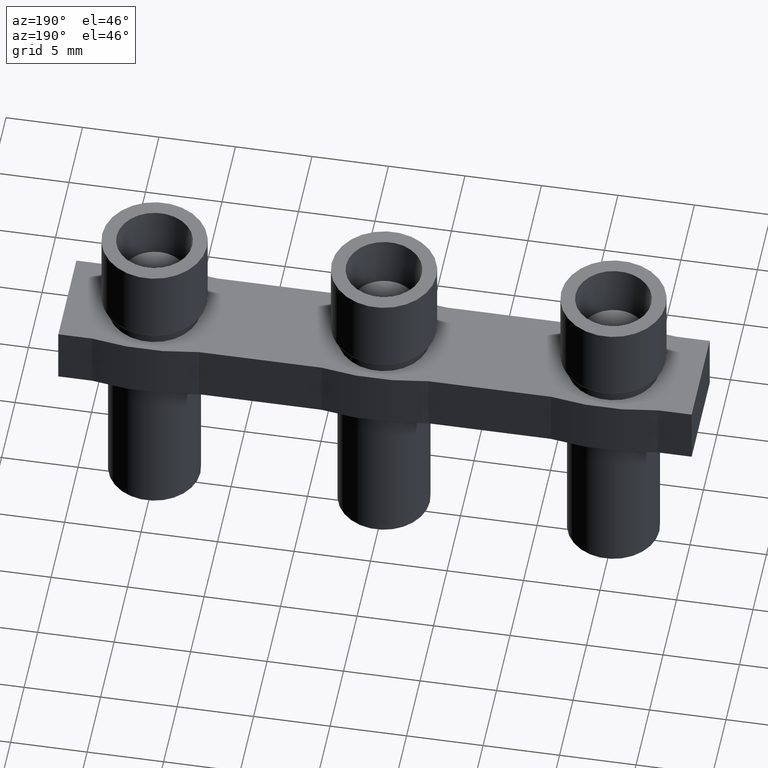
[diagram: clean part render]
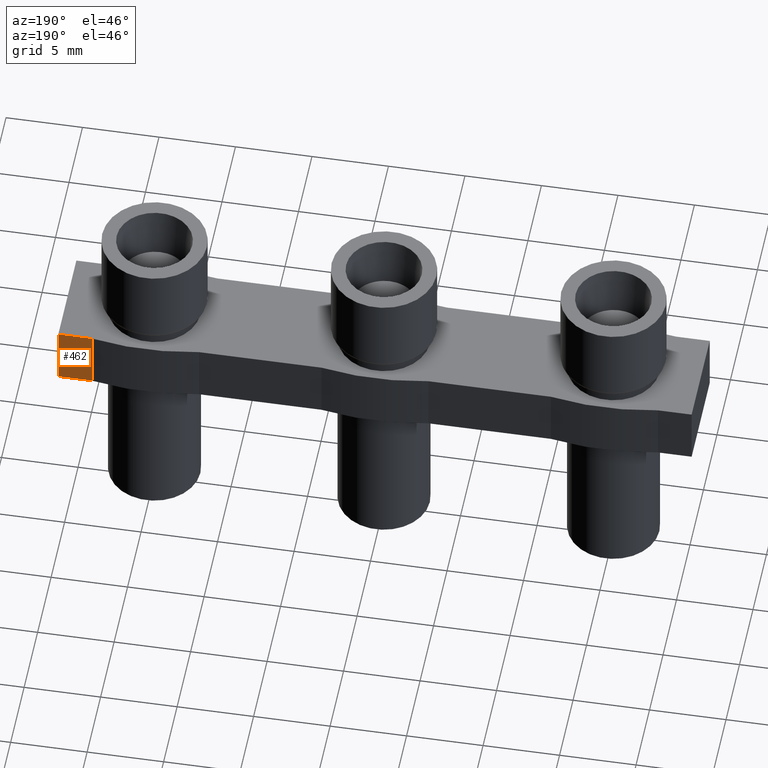
[diagram: same view with one face highlighted and labeled with its STEP entity id]
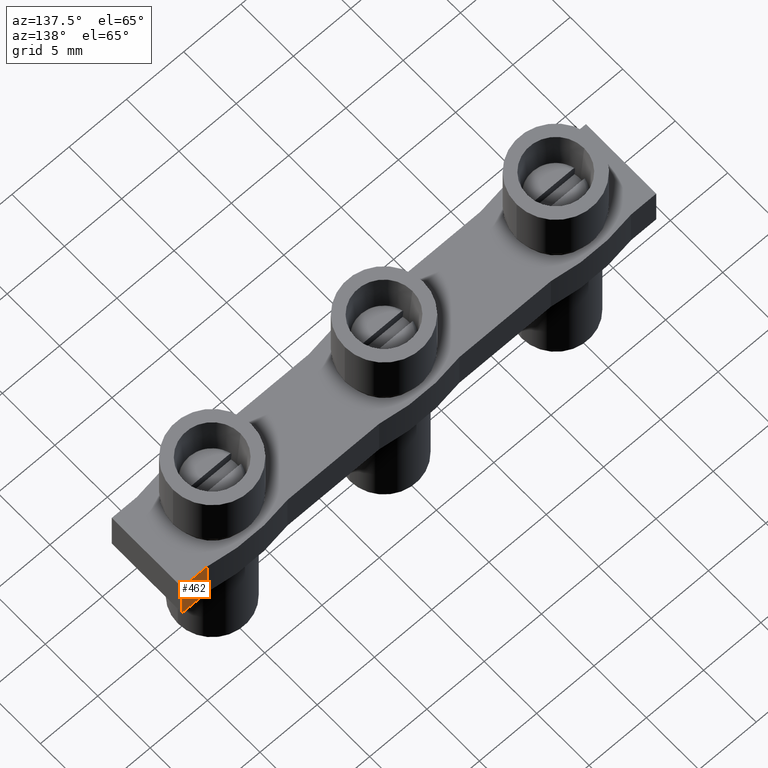
[diagram: same view with one face highlighted and labeled with its STEP entity id]
A machine part, auxiliary view. The second image highlights one B-rep face of the part: STEP entity #462.
A second angle (auxiliary view) of the same face is appended — the face is thin or edge-on in the first view.
In plain terms, the highlighted planar face has unit normal (0, -1, 0).
Its self-contained STEP definition (entity closure, byte-faithful):
#214 = EDGE_CURVE ( 'NONE', #4342, #4225, #4003, .T. ) ;
#227 = EDGE_CURVE ( 'NONE', #4230, #4342, #4037, .T. ) ;
#244 = EDGE_CURVE ( 'NONE', #4264, #4230, #2489, .T. ) ;
#253 = EDGE_CURVE ( 'NONE', #4225, #4264, #1418, .T. ) ;
#462 = ADVANCED_FACE ( 'NONE', ( #2854 ), #2817, .F. ) ;
#726 = EDGE_LOOP ( 'NONE', ( #4110, #4130, #4136, #4100 ) ) ;
#1418 = LINE ( 'NONE', #1444, #5336 ) ;
#1444 = CARTESIAN_POINT ( 'NONE',  ( 92.85000000000167100, 3.350000000000162200, -4.800000000000001600 ) ) ;
#1459 = DIRECTION ( 'NONE',  ( -1.000000000000000000, -2.491358183583711900E-016, -0.0000000000000000000 ) ) ;
#2489 = LINE ( 'NONE', #2493, #5257 ) ;
#2493 = CARTESIAN_POINT ( 'NONE',  ( 33.50000000000172700, 3.350000000000145300, -11.80160695840604700 ) ) ;
#2498 = DIRECTION ( 'NONE',  ( 0.0000000000000000000, 0.0000000000000000000, 1.000000000000000000 ) ) ;
#2585 = CARTESIAN_POINT ( 'NONE',  ( 33.50000000000169800, 3.350000000000149300, -0.9000000000000014700 ) ) ;
#2596 = CARTESIAN_POINT ( 'NONE',  ( 35.70000000000164400, 3.350000000000148000, -4.800000000000001600 ) ) ;
#2691 = CARTESIAN_POINT ( 'NONE',  ( 33.50000000000174100, 3.350000000000145300, -4.800000000000001600 ) ) ;
#2817 = PLANE ( 'NONE',  #4933 ) ;
#2831 = DIRECTION ( 'NONE',  ( 1.245679091791855700E-016, -1.000000000000000000, 0.0000000000000000000 ) ) ;
#2841 = DIRECTION ( 'NONE',  ( -1.000000000000000000, -1.245679091791855700E-016, 0.0000000000000000000 ) ) ;
#2844 = CARTESIAN_POINT ( 'NONE',  ( 13.85000000000164300, 3.350000000000145800, -0.9000000000000014700 ) ) ;
#2854 = FACE_OUTER_BOUND ( 'NONE', #726, .T. ) ;
#3948 = DIRECTION ( 'NONE',  ( -0.0000000000000000000, 0.0000000000000000000, -1.000000000000000000 ) ) ;
#3983 = CARTESIAN_POINT ( 'NONE',  ( 35.70000000000164400, 3.350000000000148400, -4.800000000000001600 ) ) ;
#4003 = LINE ( 'NONE', #3983, #5276 ) ;
#4028 = DIRECTION ( 'NONE',  ( 1.000000000000000000, 1.245679091791855700E-016, -0.0000000000000000000 ) ) ;
#4037 = LINE ( 'NONE', #4039, #5286 ) ;
#4039 = CARTESIAN_POINT ( 'NONE',  ( 13.85000000000164300, 3.350000000000145800, -0.9000000000000014700 ) ) ;
#4100 = ORIENTED_EDGE ( 'NONE', *, *, #227, .T. ) ;
#4110 = ORIENTED_EDGE ( 'NONE', *, *, #214, .T. ) ;
#4130 = ORIENTED_EDGE ( 'NONE', *, *, #253, .T. ) ;
#4136 = ORIENTED_EDGE ( 'NONE', *, *, #244, .T. ) ;
#4225 = VERTEX_POINT ( 'NONE', #2596 ) ;
#4230 = VERTEX_POINT ( 'NONE', #2585 ) ;
#4264 = VERTEX_POINT ( 'NONE', #2691 ) ;
#4342 = VERTEX_POINT ( 'NONE', #4674 ) ;
#4674 = CARTESIAN_POINT ( 'NONE',  ( 35.70000000000164400, 3.350000000000148400, -0.9000000000000014700 ) ) ;
#4933 = AXIS2_PLACEMENT_3D ( 'NONE', #2844, #2831, #2841 ) ;
#5257 = VECTOR ( 'NONE', #2498, 1000.000000000000000 ) ;
#5276 = VECTOR ( 'NONE', #3948, 1000.000000000000000 ) ;
#5286 = VECTOR ( 'NONE', #4028, 1000.000000000000000 ) ;
#5336 = VECTOR ( 'NONE', #1459, 1000.000000000000000 ) ;